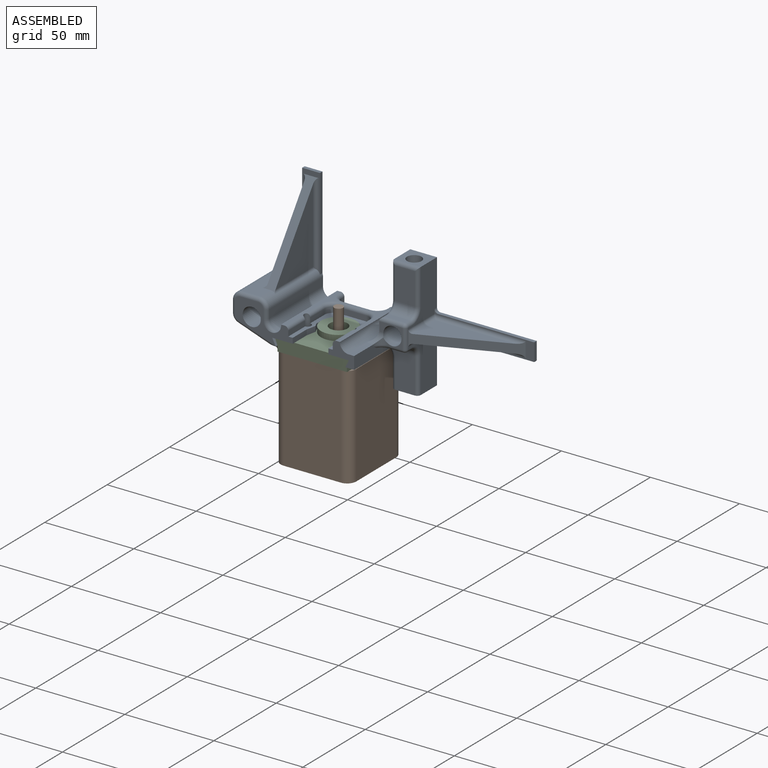
[diagram: assembled view]
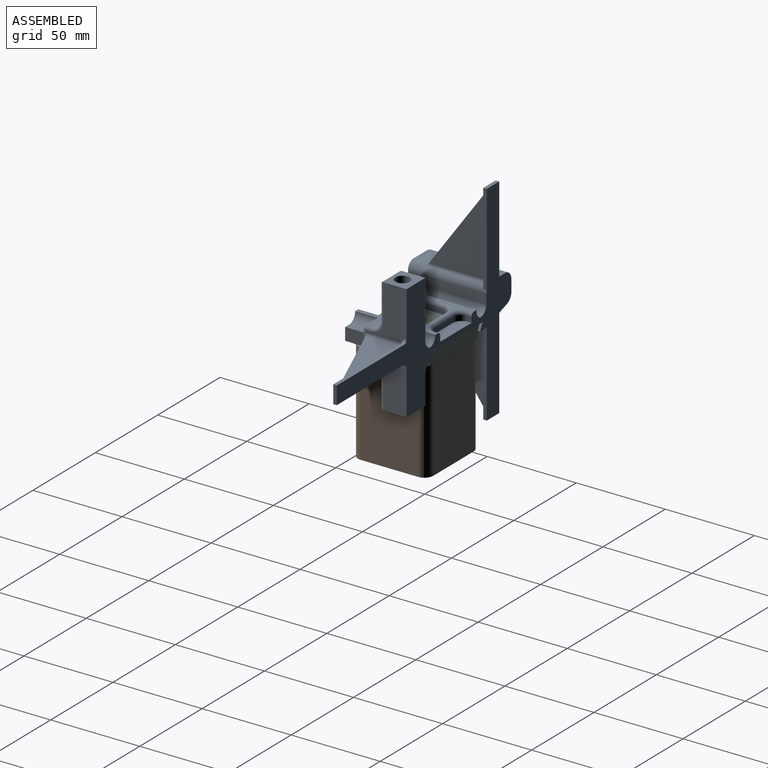
[diagram: assembled view, second angle]
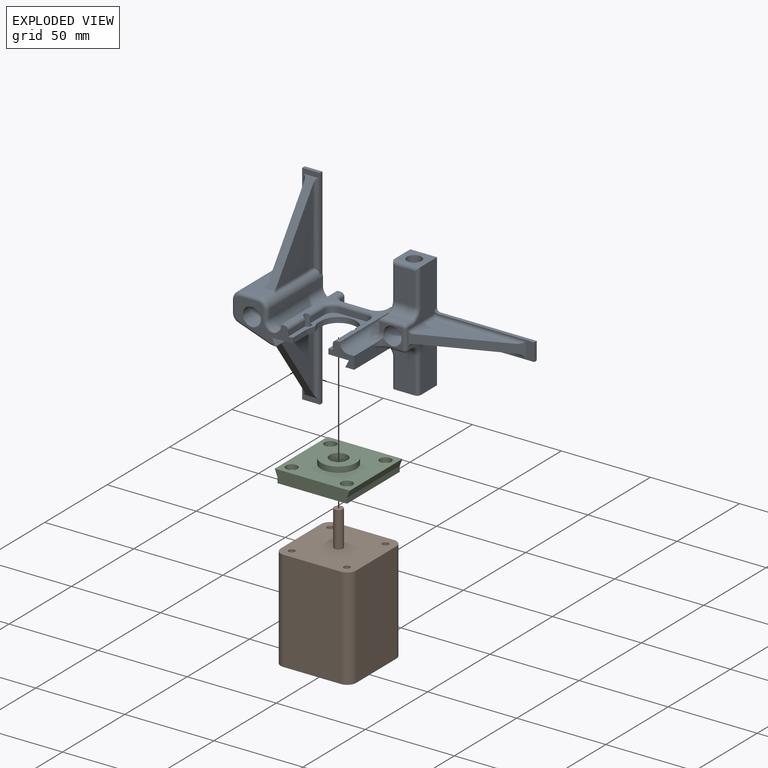
[diagram: exploded view]
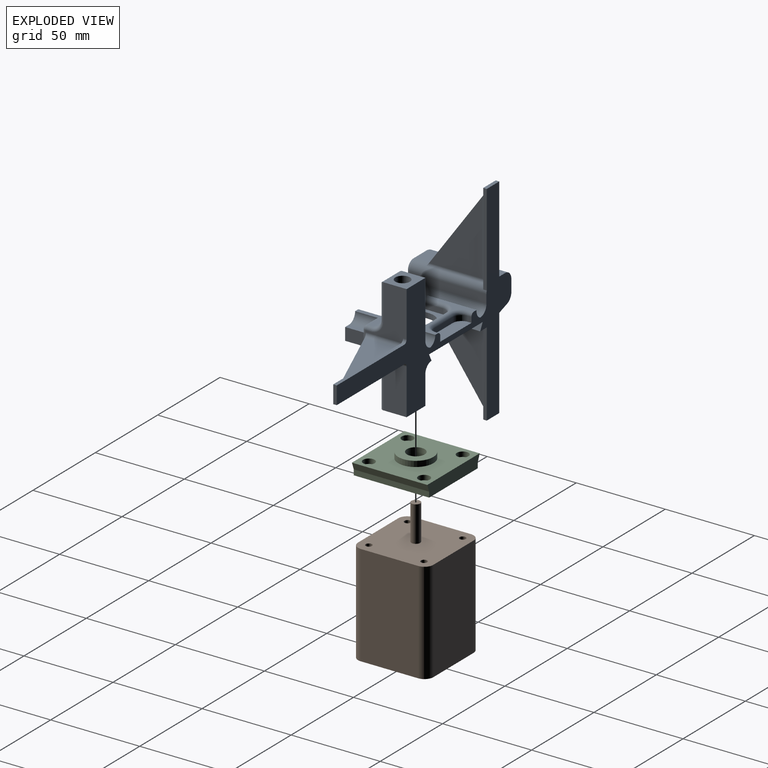
[diagram: exploded view, second angle]
ASSEMBLY  parts=3 mates=6
PART A: 146 faces, bbox 119.6x142.5x47 mm
  f0: plane 43x16.66mm, normal (0.94,-0.33,0), area 421.9mm2, adj f16,f32,f48,f72,f124,f134,f136,f138
  f1: cylinder r=5mm len=43mm, axis (0,0,1), area 219.1mm2, adj f16,f43,f44,f77,f128,f131,f132,f144
  f2: plane 28x23mm, normal (0,1,0), area 379.5mm2, adj f16,f17,f103,f104,f106,f107,f117,f118
  f3: plane 45x9mm, normal (-1,0,0), area 111mm2, adj f10,f16,f58,f80,f82,f87,f88,f108
  f4: plane 11.5x3mm, normal (0,-1,0), area 34.5mm2, adj f6,f65,f69,f84
  f5: plane 13.5x3mm, normal (0,1,0), area 40.5mm2, adj f6,f10,f68,f108
  f6: plane 34x25mm, normal (-1,0,0), area 228.5mm2, adj f4,f5,f8,f9,f10,f26,f34,f35
  f7: plane 25x7mm, normal (-1,0,0), area 164.3mm2, adj f16,f55,f56,f57,f62,f63
  f8: plane 3.53x3mm, normal (0,1,0), area 10.6mm2, adj f6,f11,f34,f53
  f9: plane 11.25x3mm, normal (0,-1,0), area 33.7mm2, adj f6,f11,f26,f51
  f10: plane 32.5x19.55mm, normal (0,0,1), area 231.8mm2, adj f3,f5,f6,f11,f33,f36,f46,f58
  f11: plane 45x43mm, normal (1,0,0), area 1311.7mm2, adj f8,f9,f10,f16,f26,f30,f33,f34
  f12: plane 13x5.1mm, normal (1,0,0), area 42.3mm2, adj f23,f27,f100,f102,f107
  f13: plane 16x13mm, normal (0,-1,0), area 208mm2, adj f16,f17,f41,f89
  f14: plane 32x25mm, normal (0,-1,0), area 486.5mm2, adj f15,f16,f19,f28,f92,f94,f96
  f15: plane 15x13mm, normal (-1,0,0), area 142.2mm2, adj f14,f16,f22,f70,f93
  f16: plane 140x117.54mm, normal (0,0,-1), area 3114.4mm2, adj f0,f1,f2,f3,f7,f11,f13,f14
  f17: plane 15x15mm, normal (1,0,0), area 170.5mm2, adj f2,f13,f16,f18,f37,f89,f104
  f18: plane 20x12.26mm, normal (0,0,1), area 221.6mm2, adj f17,f23,f89,f90,f104
  f19: plane 13x11mm, normal (0,0,1), area 40.8mm2, adj f14,f29,f39,f42,f98,f102,f103
  f20: plane 11x3mm, normal (-1,0,0), area 33mm2, adj f24,f96,f98,f99
  f21: plane 18x11mm, normal (0,0,1), area 198mm2, adj f24,f92,f93,f95
  f22: plane 28x23mm, normal (0,1,0), area 379.5mm2, adj f15,f16,f95,f97,f99,f103,f117,f120
  f23: cylinder r=5mm len=13.55mm, axis (0,-1,0), area 102mm2, adj f12,f18,f27,f31,f91,f106
  f24: cylinder r=5mm len=11mm, axis (0,-1,0), area 86.4mm2, adj f20,f21,f94,f97
  f25: plane 15x3mm, normal (-1,0,0), area 45mm2, adj f26,f27,f42,f67
  f26: plane 14.5x12mm, normal (0,0,1), area 84mm2, adj f6,f9,f11,f25,f27,f30,f31,f54
  f27: plane 30.48x7.58mm, normal (0,1,0), area 163.3mm2, adj f12,f23,f25,f26,f29,f31,f100
  f28: cylinder r=5mm len=29mm, axis (0,0,-1), area 184.9mm2, adj f14,f16,f42,f67
  f29: cylinder r=5mm len=5mm, axis (1,0,0), area 16.3mm2, adj f19,f27,f39,f42,f100
  f30: plane 45x4mm, normal (-0.45,-0.89,0), area 201.2mm2, adj f11,f16,f26,f31,f41
  f31: plane 31.69x5.36mm, normal (1,0,0), area 151.6mm2, adj f23,f26,f27,f30,f91
  f32: plane 44.97x5mm, normal (1,0,0), area 222.4mm2, adj f0,f16,f33,f72
  f33: plane 45x4mm, normal (-0.45,0.89,0), area 201.2mm2, adj f10,f11,f16,f32,f72
  f34: cylinder r=10mm len=20mm, axis (1,0,0), area 94.2mm2, adj f6,f8,f11,f35
  f35: plane 3.53x3mm, normal (0,-1,0), area 10.6mm2, adj f6,f11,f34,f50
  f36: plane 11.25x3mm, normal (0,1,0), area 33.8mm2, adj f6,f10,f11,f52
  f37: cylinder r=4.1mm len=20mm, axis (1,0,0), area 515.2mm2, adj f17,f38
  f38: plane 8.2x8.2mm, normal (1,0,0), area 52.8mm2, adj f37
  f39: cylinder r=5.1mm len=20.55mm, axis (0,0,1), area 642.5mm2, adj f19,f29,f40,f42
  f40: plane 10.2x10.2mm, normal (0,0,1), area 81.7mm2, adj f39
  f41: cylinder r=5mm len=13.68mm, axis (0,0,1), area 103.7mm2, adj f13,f16,f30,f90,f91
  f42: cylinder r=5mm len=6.72mm, axis (0,-1,0), area 26.8mm2, adj f19,f25,f28,f29,f39,f67
  f43: plane 43x5mm, normal (0,1,0), area 215mm2, adj f1,f16,f49,f78
  f44: plane 43x10mm, normal (-1,0,0), area 262.9mm2, adj f1,f16,f47,f76,f128,f132,f133,f142
  f45: plane 43x6.45mm, normal (0,-1,0), area 277.5mm2, adj f16,f47,f48,f74
  f46: cylinder r=5.1mm len=40mm, axis (0,0,1), area 1281.8mm2, adj f10,f110
  f47: cylinder r=5mm len=43mm, axis (0,0,-1), area 337.7mm2, adj f16,f44,f45,f75
  f48: cylinder r=5mm len=43mm, axis (0,0,-1), area 265.3mm2, adj f0,f16,f45,f73
  f49: cylinder r=5mm len=43mm, axis (0,0,-1), area 337.7mm2, adj f16,f43,f66,f79
  f50: plane 3x2.15mm, normal (0,-0.88,-0.47), area 7.3mm2, adj f6,f11,f35,f51
  f51: plane 5.57x3mm, normal (0,-0.98,0.2), area 17.1mm2, adj f6,f9,f11,f50
  f52: plane 5.57x3mm, normal (0,0.98,0.2), area 17.1mm2, adj f6,f11,f36,f53
  f53: plane 3x2.15mm, normal (0,0.88,-0.47), area 7.3mm2, adj f6,f8,f11,f52
  f54: plane 13.5x3mm, normal (0,-1,0), area 40.5mm2, adj f6,f26,f69,f109
  f55: plane 3x2mm, normal (0,-1,0), area 6mm2, adj f7,f16,f62,f81
  f56: plane 15x3mm, normal (0,0,-1), area 45mm2, adj f7,f62,f63,f85
  f57: plane 3x2mm, normal (0,1,0), area 6mm2, adj f7,f16,f63,f80
  f58: plane 45x0.42mm, normal (0,-1,0), area 18.8mm2, adj f3,f10,f16,f66
  f59: plane 11.5x3mm, normal (0,1,0), area 34.5mm2, adj f6,f64,f68,f88
  f60: plane 15x3mm, normal (0,0,1), area 45mm2, adj f6,f64,f65,f85
  f61: plane 45x9mm, normal (-1,0,0), area 111mm2, adj f16,f26,f67,f81,f83,f84,f86,f109
  f62: cylinder r=5mm len=5mm, axis (-1,0,0), area 23.6mm2, adj f7,f55,f56,f83
  f63: cylinder r=5mm len=5mm, axis (-1,0,0), area 23.6mm2, adj f7,f56,f57,f82
  f64: cylinder r=5mm len=5mm, axis (-1,0,0), area 23.6mm2, adj f6,f59,f60,f87
  f65: cylinder r=5mm len=5mm, axis (-1,0,0), area 23.6mm2, adj f4,f6,f60,f86
  f66: cylinder r=5mm len=45mm, axis (0,0,-1), area 268.5mm2, adj f10,f16,f49,f58,f79
  f67: cylinder r=5mm len=45mm, axis (0,0,1), area 323.7mm2, adj f16,f25,f26,f28,f42,f61
  f68: cylinder r=2mm len=8mm, axis (1,0,0), area 62.8mm2, adj f5,f6,f11,f59,f88,f108
  f69: cylinder r=2mm len=8mm, axis (1,0,0), area 62.8mm2, adj f4,f6,f11,f54,f84,f109
  f70: cylinder r=4.1mm len=15mm, axis (-1,0,0), area 386.4mm2, adj f15,f71
  f71: plane 8.2x8.2mm, normal (-1,0,0), area 52.8mm2, adj f70
  f72: cylinder r=2mm len=21.77mm, axis (0.33,0.94,0), area 61.7mm2, adj f0,f10,f32,f33,f73
  f73: torus R=3mm, axis (0,0,-1), area 16.6mm2, adj f10,f48,f72,f74
  f74: cylinder r=2mm len=6.45mm, axis (1,0,0), area 20.3mm2, adj f10,f45,f73,f75
  f75: torus R=3mm, axis (0,0,-1), area 21.1mm2, adj f10,f47,f74,f76
  f76: cylinder r=2mm len=10mm, axis (0,-1,0), area 31.4mm2, adj f10,f44,f75,f77
  f77: torus R=3mm, axis (0,0,-1), area 21.1mm2, adj f1,f10,f76,f78
  f78: cylinder r=2mm len=5mm, axis (-1,0,0), area 15.7mm2, adj f10,f43,f77,f79
  f79: torus R=7mm, axis (0,0,-1), area 16.9mm2, adj f10,f49,f66,f78
  f80: cylinder r=2mm len=2mm, axis (0,0,1), area 6.3mm2, adj f3,f16,f57,f82
  f81: cylinder r=2mm len=2mm, axis (0,0,-1), area 6.3mm2, adj f16,f55,f61,f83
  f82: torus R=7mm, axis (-1,0,0), area 28.3mm2, adj f3,f63,f80,f85
  f83: torus R=7mm, axis (-1,0,0), area 28.3mm2, adj f61,f62,f81,f85
  f84: cylinder r=2mm len=13.5mm, axis (0,0,-1), area 39.3mm2, adj f4,f61,f69,f86
  f85: cylinder r=2mm len=15mm, axis (0,1,0), area 94.2mm2, adj f56,f60,f82,f83,f86,f87
  f86: torus R=7mm, axis (-1,0,0), area 28.3mm2, adj f61,f65,f84,f85
  f87: torus R=7mm, axis (-1,0,0), area 28.3mm2, adj f3,f64,f85,f88
  f88: cylinder r=2mm len=13.5mm, axis (0,0,1), area 39.3mm2, adj f3,f59,f68,f87
  f89: cylinder r=2mm len=16mm, axis (1,0,0), area 50.3mm2, adj f13,f17,f18,f90
  f90: torus R=7mm, axis (0,0,1), area 10.9mm2, adj f18,f41,f89,f91
  f91: bspline ~6.9x4.03mm, area 8.9mm2, adj f23,f31,f41,f90
  f92: cylinder r=2mm len=20mm, axis (1,0,0), area 59.7mm2, adj f14,f21,f93,f94
  f93: cylinder r=2mm len=15mm, axis (0,-1,0), area 40.8mm2, adj f15,f21,f92,f95
  f94: torus R=7mm, axis (0,-1,0), area 28.3mm2, adj f14,f24,f92,f96
  f95: cylinder r=2mm len=20mm, axis (-1,0,0), area 59.7mm2, adj f21,f22,f93,f97
  f96: cylinder r=2mm len=5mm, axis (0,0,1), area 12.6mm2, adj f14,f20,f94,f98
  f97: torus R=7mm, axis (0,-1,0), area 28.3mm2, adj f22,f24,f95,f99
  f98: cylinder r=2mm len=13mm, axis (0,1,0), area 37.7mm2, adj f19,f20,f96,f101
  f99: cylinder r=2mm len=3mm, axis (0,0,-1), area 9.4mm2, adj f20,f22,f97,f101
  f100: torus R=7mm, axis (1,0,0), area 20.9mm2, adj f12,f27,f29,f102
  f101: sphere r=2mm, area 6.3mm2, adj f98,f99,f103
  f102: cylinder r=2mm len=8mm, axis (0,1,0), area 25.1mm2, adj f12,f19,f100,f105
  f103: cylinder r=2mm len=11mm, axis (-1,0,0), area 34.6mm2, adj f2,f19,f22,f101,f105,f111
  f104: cylinder r=2mm len=20mm, axis (-1,0,0), area 62.8mm2, adj f2,f17,f18,f106
  f105: sphere r=2mm, area 4mm2, adj f102,f103,f107
  f106: torus R=7mm, axis (0,-1,0), area 28.3mm2, adj f2,f23,f104,f107
  f107: cylinder r=2mm len=3mm, axis (0,0,1), area 9.4mm2, adj f2,f12,f105,f106
  f108: cylinder r=2mm len=15.5mm, axis (0,0,1), area 45.6mm2, adj f3,f5,f10,f68
  f109: cylinder r=2mm len=15.5mm, axis (0,0,-1), area 45.6mm2, adj f26,f54,f61,f69
  f110: plane 10.2x10.2mm, normal (0,0,1), area 81.7mm2, adj f46
  f111: plane 53.18x23.05mm, normal (0,0.38,0.93), area 282.7mm2, adj f103,f112,f113,f117,f118,f119,f120,f121
  f112: plane 44.26x18.18mm, normal (1,0,0), area 402.3mm2, adj f111,f118,f119
  f113: plane 44.26x18.18mm, normal (-1,0,0), area 402.3mm2, adj f111,f120,f121
  f114: plane 54x2mm, normal (1,0,0), area 108mm2, adj f16,f115,f117,f123
  f115: plane 10x2mm, normal (0,1,0), area 20mm2, adj f16,f114,f116,f117
  f116: plane 54x2mm, normal (-1,0,0), area 108mm2, adj f16,f115,f117,f122
  f117: plane 56x14mm, normal (0,0,1), area 101.5mm2, adj f2,f22,f111,f114,f115,f116,f119,f121
  f118: cylinder r=2mm len=21mm, axis (0,0,-1), area 61.5mm2, adj f2,f111,f112,f119
  f119: cylinder r=2mm len=51.13mm, axis (0,1,0), area 149.8mm2, adj f111,f112,f117,f118
  f120: cylinder r=2mm len=21mm, axis (0,0,1), area 61.5mm2, adj f22,f111,f113,f121
  f121: cylinder r=2mm len=51.13mm, axis (0,-1,0), area 149.8mm2, adj f111,f113,f117,f120
  f122: cylinder r=2mm len=2mm, axis (0,0,1), area 6.3mm2, adj f16,f22,f116,f117
  f123: cylinder r=2mm len=2mm, axis (0,0,-1), area 6.3mm2, adj f2,f16,f114,f117
  f124: plane 48.85x35.36mm, normal (0.58,0,0.81), area 290.7mm2, adj f0,f125,f126,f136,f138,f139,f140,f141
  f125: plane 39.85x28.57mm, normal (0,1,0), area 569.3mm2, adj f124,f138,f139
  f126: plane 43x30.83mm, normal (0,-1,0), area 662.9mm2, adj f124,f140,f141
  f127: plane 40.69x29.17mm, normal (0,-1,0), area 593.5mm2, adj f128,f142,f143
  f128: plane 47.65x34.5mm, normal (-0.58,0,0.81), area 284.5mm2, adj f1,f44,f127,f129,f132,f142,f143,f144
  f129: plane 42.09x30.18mm, normal (0,1,0), area 635.1mm2, adj f128,f144,f145
  f130: plane 10x2mm, normal (-1,0,0), area 20mm2, adj f16,f131,f132,f133
  f131: plane 51.56x2mm, normal (0,1,0), area 103.1mm2, adj f1,f16,f130,f132
  f132: plane 51.56x10mm, normal (0,0,1), area 74.7mm2, adj f1,f44,f128,f130,f131,f133,f143,f145
  f133: plane 48.27x2mm, normal (0,-1,0), area 96.5mm2, adj f16,f44,f130,f132
  f134: plane 50.88x2mm, normal (0,-1,0), area 101.8mm2, adj f0,f16,f136,f137
  f135: plane 47.37x2mm, normal (0,1,0), area 94.7mm2, adj f16,f136,f137,f138
  f136: plane 50.88x10mm, normal (0,0,1), area 74.2mm2, adj f0,f124,f134,f135,f137,f138,f139,f141
  f137: plane 10x2mm, normal (1,0,0), area 20mm2, adj f16,f134,f135,f136
  f138: cylinder r=2mm len=34.01mm, axis (0,0,-1), area 118.5mm2, adj f0,f16,f124,f125,f135,f136,f139
  f139: cylinder r=2mm len=44.64mm, axis (-1,0,0), area 132.7mm2, adj f124,f125,f136,f138
  f140: cylinder r=2mm len=34.07mm, axis (0,0,1), area 80.1mm2, adj f0,f124,f126,f141
  f141: cylinder r=2mm len=47.91mm, axis (1,0,0), area 144.4mm2, adj f0,f124,f126,f136,f140
  f142: cylinder r=2mm len=32.61mm, axis (0,0,-1), area 97mm2, adj f44,f127,f128,f143
  f143: cylinder r=2mm len=45.48mm, axis (1,0,0), area 135.4mm2, adj f127,f128,f132,f142
  f144: cylinder r=2mm len=32.92mm, axis (0,0,1), area 58.5mm2, adj f1,f128,f129,f145
  f145: cylinder r=2mm len=47.77mm, axis (-1,0,0), area 141mm2, adj f1,f128,f129,f132,f144
PART B: 20 faces, bbox 42.3x42.3x77 mm
  f0: plane 57x32.3mm, normal (-1,0,0), area 1841.1mm2, adj f4,f5,f16,f19
  f1: plane 57x32.3mm, normal (0,-1,0), area 1841.1mm2, adj f4,f5,f16,f17
  f2: plane 57x32.3mm, normal (1,0,0), area 1841.1mm2, adj f4,f5,f17,f18
  f3: plane 57x32.3mm, normal (0,1,0), area 1841.1mm2, adj f4,f5,f18,f19
  f4: plane 42.3x42.3mm, normal (0,0,1), area 1709.7mm2, adj f0,f1,f2,f3,f6,f8,f10,f12
  f5: plane 42.3x42.3mm, normal (0,0,-1), area 1767.8mm2, adj f0,f1,f2,f3,f16,f17,f18,f19
  f6: cylinder r=2.5mm len=20mm, axis (0,0,-1), area 314.2mm2, adj f4,f7
  f7: plane 5x5mm, normal (0,0,1), area 19.6mm2, adj f6
  f8: cylinder r=1.75mm len=5mm, axis (0,0,1), area 55mm2, adj f4,f9
  f9: plane 3.5x3.5mm, normal (0,0,1), area 9.6mm2, adj f8
  f10: cylinder r=1.75mm len=5mm, axis (0,0,1), area 55mm2, adj f4,f11
  f11: plane 3.5x3.5mm, normal (0,0,1), area 9.6mm2, adj f10
  f12: cylinder r=1.75mm len=5mm, axis (0,0,1), area 55mm2, adj f4,f13
  f13: plane 3.5x3.5mm, normal (0,0,1), area 9.6mm2, adj f12
  f14: cylinder r=1.75mm len=5mm, axis (0,0,1), area 55mm2, adj f4,f15
  f15: plane 3.5x3.5mm, normal (0,0,1), area 9.6mm2, adj f14
  f16: cylinder r=5mm len=57mm, axis (0,0,1), area 447.7mm2, adj f0,f1,f4,f5
  f17: cylinder r=5mm len=57mm, axis (0,0,-1), area 447.7mm2, adj f1,f2,f4,f5
  f18: cylinder r=5mm len=57mm, axis (0,0,1), area 447.7mm2, adj f2,f3,f4,f5
  f19: cylinder r=5mm len=57mm, axis (0,0,-1), area 447.7mm2, adj f0,f3,f4,f5
PART C: 25 faces, bbox 42x10.2x42.3 mm
  f0: cylinder r=5mm len=10mm, axis (0,-1,0), area 243.5mm2, adj f22,f23
  f1: cylinder r=2.05mm len=4.25mm, axis (0,-1,0), area 54.7mm2, adj f12,f19
  f2: cylinder r=2.05mm len=4.25mm, axis (0,-1,0), area 54.7mm2, adj f12,f17
  f3: cylinder r=2.05mm len=4.25mm, axis (0,-1,0), area 54.7mm2, adj f12,f15
  f4: cylinder r=2.05mm len=4.25mm, axis (0,-1,0), area 54.7mm2, adj f12,f13
  f5: plane 42.3x4mm, normal (-0.94,-0.35,0), area 180.7mm2, adj f7,f8,f9,f11
  f6: plane 42.3x4mm, normal (0.94,-0.35,0), area 180.7mm2, adj f7,f8,f9,f10
  f7: plane 42.3x42mm, normal (0,1,0), area 1337.5mm2, adj f5,f6,f8,f9,f14,f16,f18,f20
  f8: plane 42x7mm, normal (0,0,1), area 279mm2, adj f5,f6,f7,f10,f11,f12
  f9: plane 42x7mm, normal (0,0,-1), area 279mm2, adj f5,f6,f7,f10,f11,f12
  f10: plane 42.3x3mm, normal (1,0,0), area 126.9mm2, adj f6,f8,f9,f12
  f11: plane 42.3x3mm, normal (-1,0,0), area 126.9mm2, adj f5,f8,f9,f12
  f12: plane 42.3x39mm, normal (0,-1,0), area 1144.5mm2, adj f1,f2,f3,f4,f8,f9,f10,f11
  f13: plane 6.5x6.5mm, normal (0,1,0), area 20mm2, adj f4,f14
  f14: cylinder r=3.25mm len=6.5mm, axis (0,1,0), area 56.2mm2, adj f7,f13
  f15: plane 6.5x6.5mm, normal (0,1,0), area 20mm2, adj f3,f16
  f16: cylinder r=3.25mm len=6.5mm, axis (0,1,0), area 56.2mm2, adj f7,f15
  f17: plane 6.5x6.5mm, normal (0,1,0), area 20mm2, adj f2,f18
  f18: cylinder r=3.25mm len=6.5mm, axis (0,1,0), area 56.2mm2, adj f7,f17
  f19: plane 6.5x6.5mm, normal (0,1,0), area 20mm2, adj f1,f20
  f20: cylinder r=3.25mm len=6.5mm, axis (0,1,0), area 56.2mm2, adj f7,f19
  f21: cylinder r=9.88mm len=19.75mm, axis (0,-1,0), area 195.4mm2, adj f7,f22
  f22: plane 19.75x19.75mm, normal (0,1,0), area 227.8mm2, adj f0,f21
  f23: plane 24x24mm, normal (0,-1,0), area 373.8mm2, adj f0,f24
  f24: cylinder r=12mm len=24mm, axis (0,-1,0), area 181mm2, adj f12,f23
PLACE A rot(axis=(0.58,0.58,-0.58),120deg) t=(32,22.5,-5.5)mm
PLACE B t=(-21.15,-21.15,-48.5)mm
PLACE C rot(axis=(1,0,0),90deg) t=(-19.5,0,-17)mm
MATE planar C.f12 <-> B.f6  axis (0,0,-1) through (19.5,0,-20)mm
MATE cylindrical C.f0 <-> B.f6  axis (0,0,-1) through (0,0,-9.85)mm
MATE parallel A.f26 <-> B.f1  axis (0,-1,0) through (12.5,-22.5,-10)mm
MATE cylindrical C.f2 <-> B.f14  axis (0,0,-1) through (15.5,-15.5,-20)mm
MATE planar A.f11 <-> C.f7  axis (0,0,-1) through (-10,0,-13)mm
MATE cylindrical C.f21 <-> A.f34  axis (0,0,-1) through (0,0,-11.43)mm
